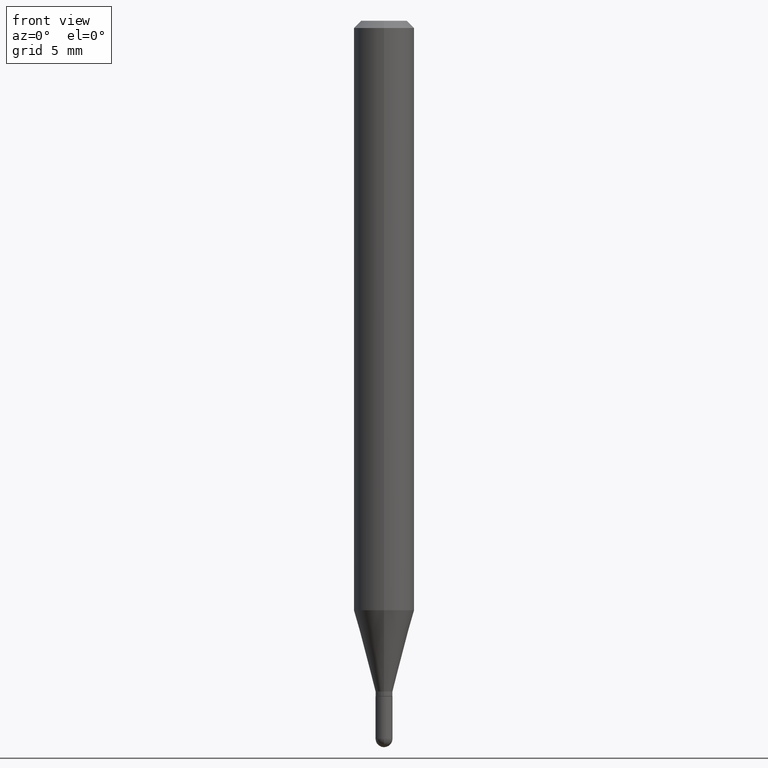
[diagram: clean part render]
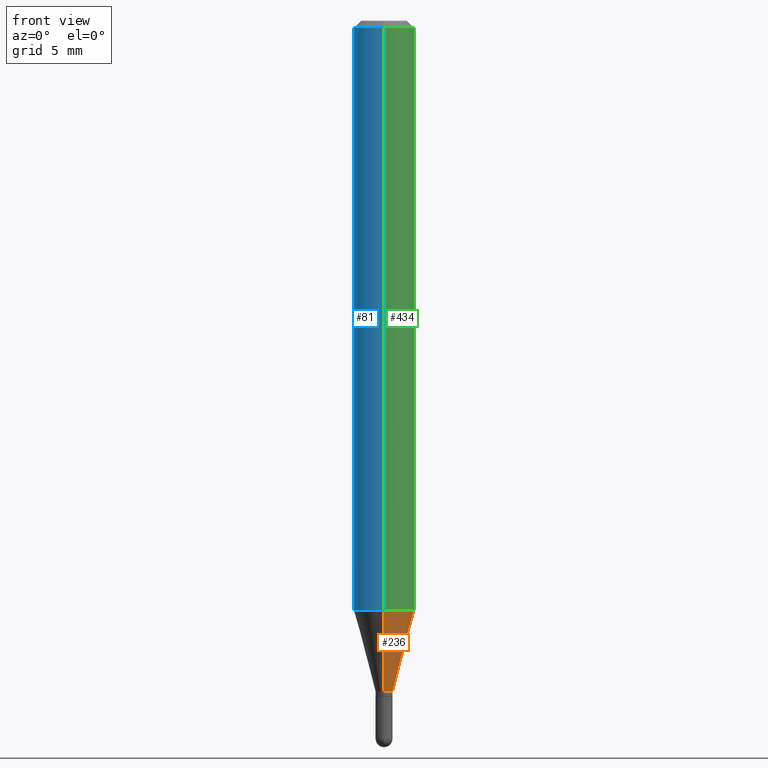
[diagram: same view with three faces highlighted in distinct colors, each labeled with its STEP entity id]
A machine part, front view with three faces highlighted in distinct colors.
Their STEP definitions:

[orange] entity #236 — the highlighted conical surface has half-angle 15 deg.
#22 = DIRECTION ( 'NONE',  ( -6.982962677686265133E-15, -1.000000000000000000, 0.000000000000000000 ) ) ;
#23 = LINE ( 'NONE', #151, #429 ) ;
#36 = DIRECTION ( 'NONE',  ( -2.445477258460488416E-29, 3.491469234703768188E-15, 1.000000000000000000 ) ) ;
#63 = DIRECTION ( 'NONE',  ( -2.445477258460488416E-29, 3.491469234703768188E-15, 1.000000000000000000 ) ) ;
#82 = CARTESIAN_POINT ( 'NONE',  ( -4.364351673553618899E-16, -0.06250000000000427436, -1.217057713659400742 ) ) ;
#83 = DIRECTION ( 'NONE',  ( -2.445477258460488416E-29, 3.491469234703768188E-15, 1.000000000000000000 ) ) ;
#104 = EDGE_LOOP ( 'NONE', ( #422, #144, #168, #253 ) ) ;
#114 = EDGE_CURVE ( 'NONE', #221, #468, #23, .T. ) ;
#122 = EDGE_CURVE ( 'NONE', #468, #166, #437, .T. ) ;
#132 = CARTESIAN_POINT ( 'NONE',  ( 2.842170943040716840E-16, 0.01749999999999508893, -1.385000000000000009 ) ) ;
#144 = ORIENTED_EDGE ( 'NONE', *, *, #432, .T. ) ;
#151 = CARTESIAN_POINT ( 'NONE',  ( -1.222018468594752731E-16, -0.01750000000000476175, -1.385000000000000009 ) ) ;
#166 = VERTEX_POINT ( 'NONE', #187 ) ;
#168 = ORIENTED_EDGE ( 'NONE', *, *, #122, .F. ) ;
#174 = FACE_OUTER_BOUND ( 'NONE', #104, .T. ) ;
#187 = CARTESIAN_POINT ( 'NONE',  ( 4.440892098500920998E-16, 0.06249999999999572564, -1.217057713659401186 ) ) ;
#211 = CARTESIAN_POINT ( 'NONE',  ( 2.976286960987981903E-29, -4.249319564100705935E-15, -1.217057713659400964 ) ) ;
#221 = VERTEX_POINT ( 'NONE', #419 ) ;
#225 = CIRCLE ( 'NONE', #438, 0.01749999999999992534 ) ;
#236 = ADVANCED_FACE ( 'NONE', ( #174 ), #370, .T. ) ;
#245 = DIRECTION ( 'NONE',  ( -6.982962677686265133E-15, -1.000000000000000000, 0.000000000000000000 ) ) ;
#253 = ORIENTED_EDGE ( 'NONE', *, *, #114, .F. ) ;
#276 = DIRECTION ( 'NONE',  ( -6.982962677686265922E-15, -1.000000000000000000, 4.370956789862821150E-15 ) ) ;
#315 = AXIS2_PLACEMENT_3D ( 'NONE', #211, #36, #276 ) ;
#329 = LINE ( 'NONE', #338, #371 ) ;
#336 = AXIS2_PLACEMENT_3D ( 'NONE', #412, #63, #22 ) ;
#338 = CARTESIAN_POINT ( 'NONE',  ( 1.243449787580508491E-16, 0.01749999999999508893, -1.385000000000000009 ) ) ;
#370 = CONICAL_SURFACE ( 'NONE', #336, 0.01749999999999992534, 0.2617993877991502960 ) ;
#371 = VECTOR ( 'NONE', #498, 39.37007874015748143 ) ;
#405 = EDGE_CURVE ( 'NONE', #221, #475, #225, .T. ) ;
#410 = DIRECTION ( 'NONE',  ( -1.807323732225330534E-15, -0.2588190451025182415, 0.9659258262890689783 ) ) ;
#412 = CARTESIAN_POINT ( 'NONE',  ( 3.386986002967776783E-29, -4.835684890064719357E-15, -1.385000000000000009 ) ) ;
#419 = CARTESIAN_POINT ( 'NONE',  ( -1.222018468594752731E-16, -0.01750000000000476175, -1.385000000000000009 ) ) ;
#422 = ORIENTED_EDGE ( 'NONE', *, *, #405, .T. ) ;
#429 = VECTOR ( 'NONE', #410, 39.37007874015748143 ) ;
#432 = EDGE_CURVE ( 'NONE', #475, #166, #329, .T. ) ;
#436 = CARTESIAN_POINT ( 'NONE',  ( 3.386986002967776783E-29, -4.835684890064719357E-15, -1.385000000000000009 ) ) ;
#437 = CIRCLE ( 'NONE', #315, 0.06250000000000000000 ) ;
#438 = AXIS2_PLACEMENT_3D ( 'NONE', #436, #83, #245 ) ;
#468 = VERTEX_POINT ( 'NONE', #82 ) ;
#475 = VERTEX_POINT ( 'NONE', #132 ) ;
#498 = DIRECTION ( 'NONE',  ( 1.839019923739600710E-15, 0.2588190451025250138, 0.9659258262890670910 ) ) ;

[blue] entity #81 — the highlighted cylindrical surface (edge-blend (fillet) strip) has radius 1.5875 mm, axis along (-0, 0, 1).
#2 = VECTOR ( 'NONE', #240, 39.37007874015748143 ) ;
#5 = CARTESIAN_POINT ( 'NONE',  ( 4.440892098500924943E-16, 0.06249999999999993755, -0.01500000000000022669 ) ) ;
#28 = CARTESIAN_POINT ( 'NONE',  ( 4.440892098500625669E-16, 0.06250000000000000000, -2.182168271689854871E-16 ) ) ;
#38 = FACE_OUTER_BOUND ( 'NONE', #411, .T. ) ;
#57 = DIRECTION ( 'NONE',  ( -6.982962677686265922E-15, -1.000000000000000000, 4.370956789862821150E-15 ) ) ;
#58 = DIRECTION ( 'NONE',  ( -2.445477258460488416E-29, 3.491469234703768188E-15, 1.000000000000000000 ) ) ;
#70 = AXIS2_PLACEMENT_3D ( 'NONE', #507, #509, #190 ) ;
#81 = ADVANCED_FACE ( 'NONE', ( #38 ), #256, .T. ) ;
#82 = CARTESIAN_POINT ( 'NONE',  ( -4.364351673553618899E-16, -0.06250000000000427436, -1.217057713659400742 ) ) ;
#86 = CARTESIAN_POINT ( 'NONE',  ( 2.976286960987981903E-29, -4.249319564100705935E-15, -1.217057713659400964 ) ) ;
#117 = EDGE_CURVE ( 'NONE', #368, #379, #257, .T. ) ;
#127 = CIRCLE ( 'NONE', #141, 0.06250000000000000000 ) ;
#131 = ORIENTED_EDGE ( 'NONE', *, *, #349, .T. ) ;
#141 = AXIS2_PLACEMENT_3D ( 'NONE', #86, #408, #57 ) ;
#149 = LINE ( 'NONE', #28, #496 ) ;
#158 = AXIS2_PLACEMENT_3D ( 'NONE', #176, #58, #504 ) ;
#166 = VERTEX_POINT ( 'NONE', #187 ) ;
#176 = CARTESIAN_POINT ( 'NONE',  ( 3.668215887690735182E-31, -5.237203852055654920E-17, -0.01500000000000000812 ) ) ;
#187 = CARTESIAN_POINT ( 'NONE',  ( 4.440892098500920998E-16, 0.06249999999999572564, -1.217057713659401186 ) ) ;
#190 = DIRECTION ( 'NONE',  ( -6.982962677686265922E-15, -1.000000000000000000, 3.491469234703767794E-15 ) ) ;
#193 = EDGE_CURVE ( 'NONE', #166, #368, #149, .T. ) ;
#240 = DIRECTION ( 'NONE',  ( -2.445477258460488416E-29, 3.491469234703768583E-15, 1.000000000000000000 ) ) ;
#256 = CYLINDRICAL_SURFACE ( 'NONE', #70, 0.06250000000000000000 ) ;
#257 = CIRCLE ( 'NONE', #158, 0.06250000000000000000 ) ;
#266 = CARTESIAN_POINT ( 'NONE',  ( -4.364351673553916201E-16, -0.06250000000000000000, 2.182168271689854871E-16 ) ) ;
#295 = ORIENTED_EDGE ( 'NONE', *, *, #506, .T. ) ;
#349 = EDGE_CURVE ( 'NONE', #166, #468, #127, .T. ) ;
#364 = ORIENTED_EDGE ( 'NONE', *, *, #117, .F. ) ;
#368 = VERTEX_POINT ( 'NONE', #5 ) ;
#379 = VERTEX_POINT ( 'NONE', #487 ) ;
#384 = ORIENTED_EDGE ( 'NONE', *, *, #193, .F. ) ;
#408 = DIRECTION ( 'NONE',  ( -2.445477258460488416E-29, 3.491469234703768188E-15, 1.000000000000000000 ) ) ;
#411 = EDGE_LOOP ( 'NONE', ( #384, #131, #295, #364 ) ) ;
#435 = LINE ( 'NONE', #266, #2 ) ;
#459 = DIRECTION ( 'NONE',  ( -2.445477258460488416E-29, 3.491469234703768583E-15, 1.000000000000000000 ) ) ;
#468 = VERTEX_POINT ( 'NONE', #82 ) ;
#487 = CARTESIAN_POINT ( 'NONE',  ( -4.364351673553912750E-16, -0.06250000000000005551, -0.01499999999999979128 ) ) ;
#496 = VECTOR ( 'NONE', #459, 39.37007874015748143 ) ;
#504 = DIRECTION ( 'NONE',  ( -6.982962677686265922E-15, -1.000000000000000000, 3.483106191921935554E-15 ) ) ;
#506 = EDGE_CURVE ( 'NONE', #468, #379, #435, .T. ) ;
#507 = CARTESIAN_POINT ( 'NONE',  ( 0.000000000000000000, 0.000000000000000000, 0.000000000000000000 ) ) ;
#509 = DIRECTION ( 'NONE',  ( -2.445477258460488416E-29, 3.491469234703768188E-15, 1.000000000000000000 ) ) ;

[green] entity #434 — the highlighted cylindrical surface (edge-blend (fillet) strip) has radius 1.5875 mm, axis along (-0, 0, 1).
#2 = VECTOR ( 'NONE', #240, 39.37007874015748143 ) ;
#5 = CARTESIAN_POINT ( 'NONE',  ( 4.440892098500924943E-16, 0.06249999999999993755, -0.01500000000000022669 ) ) ;
#25 = CYLINDRICAL_SURFACE ( 'NONE', #214, 0.06250000000000000000 ) ;
#28 = CARTESIAN_POINT ( 'NONE',  ( 4.440892098500625669E-16, 0.06250000000000000000, -2.182168271689854871E-16 ) ) ;
#36 = DIRECTION ( 'NONE',  ( -2.445477258460488416E-29, 3.491469234703768188E-15, 1.000000000000000000 ) ) ;
#82 = CARTESIAN_POINT ( 'NONE',  ( -4.364351673553618899E-16, -0.06250000000000427436, -1.217057713659400742 ) ) ;
#88 = ORIENTED_EDGE ( 'NONE', *, *, #122, .T. ) ;
#90 = ORIENTED_EDGE ( 'NONE', *, *, #314, .F. ) ;
#93 = DIRECTION ( 'NONE',  ( -2.445477258460488416E-29, 3.491469234703768188E-15, 1.000000000000000000 ) ) ;
#112 = AXIS2_PLACEMENT_3D ( 'NONE', #325, #482, #378 ) ;
#122 = EDGE_CURVE ( 'NONE', #468, #166, #437, .T. ) ;
#149 = LINE ( 'NONE', #28, #496 ) ;
#166 = VERTEX_POINT ( 'NONE', #187 ) ;
#181 = CIRCLE ( 'NONE', #112, 0.06250000000000000000 ) ;
#187 = CARTESIAN_POINT ( 'NONE',  ( 4.440892098500920998E-16, 0.06249999999999572564, -1.217057713659401186 ) ) ;
#193 = EDGE_CURVE ( 'NONE', #166, #368, #149, .T. ) ;
#211 = CARTESIAN_POINT ( 'NONE',  ( 2.976286960987981903E-29, -4.249319564100705935E-15, -1.217057713659400964 ) ) ;
#214 = AXIS2_PLACEMENT_3D ( 'NONE', #259, #93, #386 ) ;
#240 = DIRECTION ( 'NONE',  ( -2.445477258460488416E-29, 3.491469234703768583E-15, 1.000000000000000000 ) ) ;
#251 = ORIENTED_EDGE ( 'NONE', *, *, #193, .T. ) ;
#259 = CARTESIAN_POINT ( 'NONE',  ( 0.000000000000000000, 0.000000000000000000, 0.000000000000000000 ) ) ;
#261 = ORIENTED_EDGE ( 'NONE', *, *, #506, .F. ) ;
#266 = CARTESIAN_POINT ( 'NONE',  ( -4.364351673553916201E-16, -0.06250000000000000000, 2.182168271689854871E-16 ) ) ;
#270 = FACE_OUTER_BOUND ( 'NONE', #402, .T. ) ;
#276 = DIRECTION ( 'NONE',  ( -6.982962677686265922E-15, -1.000000000000000000, 4.370956789862821150E-15 ) ) ;
#314 = EDGE_CURVE ( 'NONE', #379, #368, #181, .T. ) ;
#315 = AXIS2_PLACEMENT_3D ( 'NONE', #211, #36, #276 ) ;
#325 = CARTESIAN_POINT ( 'NONE',  ( 3.668215887690735182E-31, -5.237203852055654920E-17, -0.01500000000000000812 ) ) ;
#368 = VERTEX_POINT ( 'NONE', #5 ) ;
#378 = DIRECTION ( 'NONE',  ( -6.982962677686265922E-15, -1.000000000000000000, 3.483106191921935554E-15 ) ) ;
#379 = VERTEX_POINT ( 'NONE', #487 ) ;
#386 = DIRECTION ( 'NONE',  ( -6.982962677686265922E-15, -1.000000000000000000, 3.491469234703767794E-15 ) ) ;
#402 = EDGE_LOOP ( 'NONE', ( #88, #251, #90, #261 ) ) ;
#434 = ADVANCED_FACE ( 'NONE', ( #270 ), #25, .T. ) ;
#435 = LINE ( 'NONE', #266, #2 ) ;
#437 = CIRCLE ( 'NONE', #315, 0.06250000000000000000 ) ;
#459 = DIRECTION ( 'NONE',  ( -2.445477258460488416E-29, 3.491469234703768583E-15, 1.000000000000000000 ) ) ;
#468 = VERTEX_POINT ( 'NONE', #82 ) ;
#482 = DIRECTION ( 'NONE',  ( -2.445477258460488416E-29, 3.491469234703768188E-15, 1.000000000000000000 ) ) ;
#487 = CARTESIAN_POINT ( 'NONE',  ( -4.364351673553912750E-16, -0.06250000000000005551, -0.01499999999999979128 ) ) ;
#496 = VECTOR ( 'NONE', #459, 39.37007874015748143 ) ;
#506 = EDGE_CURVE ( 'NONE', #468, #379, #435, .T. ) ;